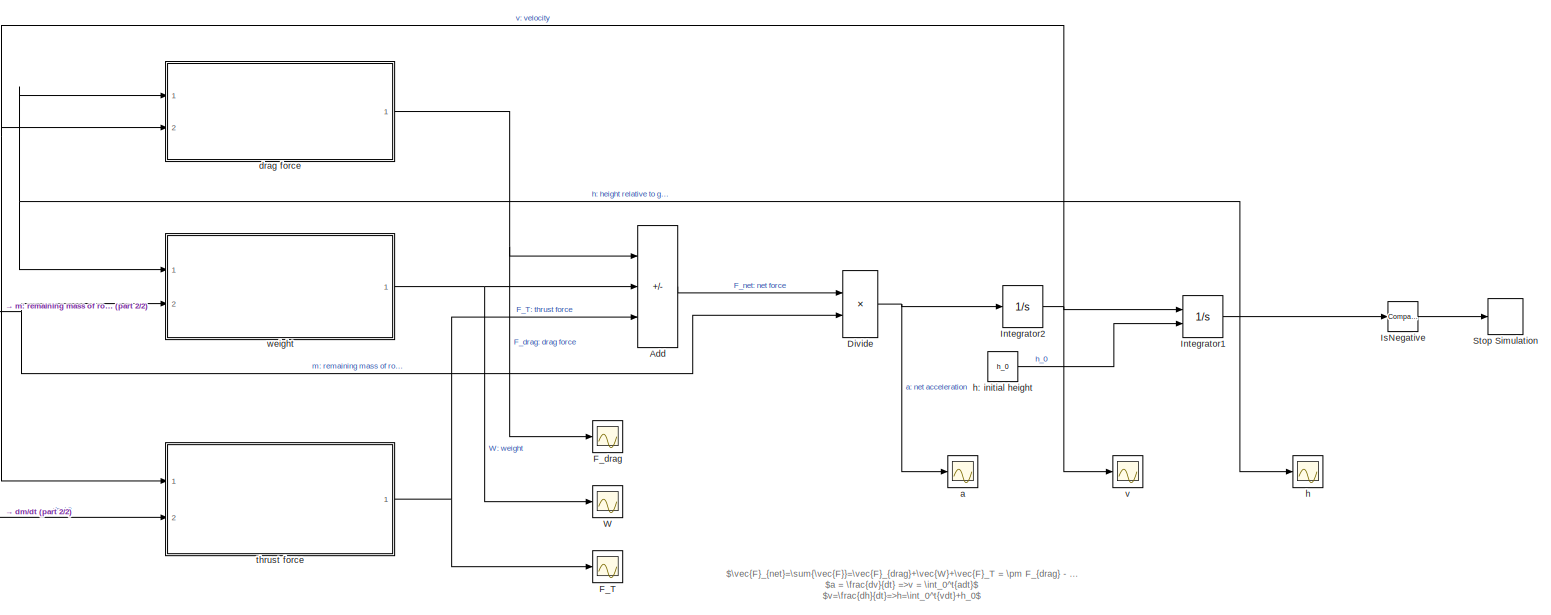
[diagram: root canvas - part 1/2, center side, full height]
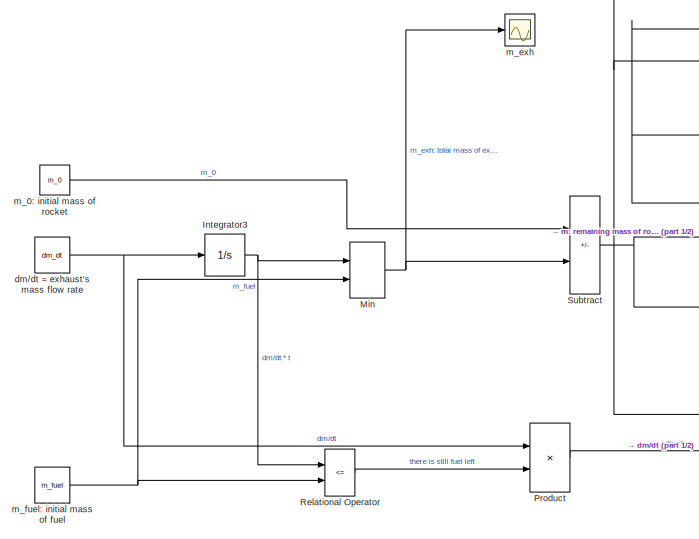
[diagram: root canvas - part 2/2, left side, full height]
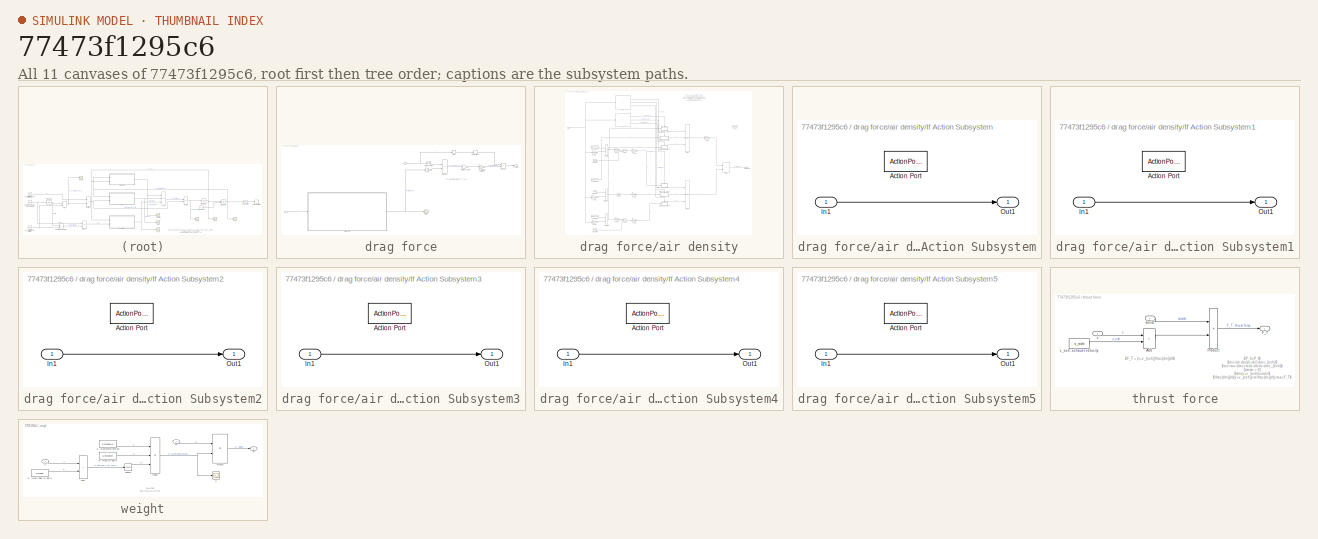
[diagram: thumbnail index - all 11 canvases of the model, root first then tree order]
MODEL slx_77473f1295c6
KIND model
CONFIG AbsTol = auto
CONFIG EnableMultiTasking = off
CONFIG FixedStep = 1e-2
CONFIG MaxStep = auto
CONFIG MinStep = auto
CONFIG RelTol = 1e-3
CONFIG SampleTimeConstraint = Unconstrained
CONFIG SolverName = FixedStepAuto
CONFIG StartTime = 0.0
CONFIG StopTime = 100
BLOCK [Sum] Add
  IconShape = rectangular
  Inputs = +-+
  Ports = [3, 1]
BLOCK [Product] Divide
  Inputs = */
  Ports = [2, 1]
BLOCK [Scope] F_T
  Floating = off
  NumInputPorts = 1
  Ports = [1]
  ScopeSpecificationString = Simulink.scopes.TimeScopeBlockCfg('CurrentConfiguration', extmgr.ConfigurationSet(extmgr.Configuration('Core','General UI',true),extmgr.Configuration('Core','Source UI',true),extmgr.Configuration('Sources','WiredSimulink',true,'DataLoggingVariableName','ScopeData3'),extmgr.Configuration('Visuals','Time Domain',true,'SerializedDisplays',{struct('MinYLimReal','-68.75','MaxYLimReal','7669.0537','YLab...<+1582ch>
BLOCK [Scope] F_drag
  Floating = off
  NumInputPorts = 1
  Ports = [1]
  ScopeSpecificationString = Simulink.scopes.TimeScopeBlockCfg('CurrentConfiguration', extmgr.ConfigurationSet(extmgr.Configuration('Core','General UI',true),extmgr.Configuration('Core','Source UI',true),extmgr.Configuration('Sources','WiredSimulink',true,'DataLoggingVariableName','ScopeData3'),extmgr.Configuration('Visuals','Time Domain',true,'SerializedDisplays',{struct('MinYLimReal','-2259.25359','MaxYLimReal','1015.9362',...<+1597ch>
BLOCK [Integrator] Integrator1
  InitialConditionSource = external
  Ports = [2, 1]
BLOCK [Integrator] Integrator2
  Ports = [1, 1]
BLOCK [Integrator] Integrator3
  Ports = [1, 1]
BLOCK [Reference] IsNegative  REF=simulink/Logic and Bit
Operations/Compare
To Zero
  Ports = [1, 1]
  SourceBlock = simulink/Logic and Bit\nOperations/Compare\nTo Zero
  SourceProductBaseCode = SL
  SourceType = Compare To Zero
BLOCK [MinMax] Min
  Inputs = 2
  Ports = [2, 1]
BLOCK [Product] Product
  Ports = [2, 1]
BLOCK [RelationalOperator] Relational Operator
  InputSameDT = off
  Operator = <=
  OutDataTypeStr = boolean
  Ports = [2, 1]
  RndMeth = Simplest
BLOCK [Stop] Stop Simulation
BLOCK [Sum] Subtract
  IconShape = rectangular
  Inputs = +-
  Ports = [2, 1]
BLOCK [Scope] W
  Floating = off
  NumInputPorts = 1
  Ports = [1]
  ScopeSpecificationString = Simulink.scopes.TimeScopeBlockCfg('CurrentConfiguration', extmgr.ConfigurationSet(extmgr.Configuration('Core','General UI',true),extmgr.Configuration('Core','Source UI',true),extmgr.Configuration('Sources','WiredSimulink',true,'DataLoggingVariableName','ScopeData2'),extmgr.Configuration('Visuals','Time Domain',true,'SerializedDisplays',{struct('MinYLimReal','-68.75','MaxYLimReal','6000.00000','YLa...<+1578ch>
BLOCK [Scope] a
  Floating = off
  NumInputPorts = 1
  Ports = [1]
  ScopeSpecificationString = Simulink.scopes.TimeScopeBlockCfg('CurrentConfiguration', extmgr.ConfigurationSet(extmgr.Configuration('Core','General UI',true),extmgr.Configuration('Core','Source UI',true),extmgr.Configuration('Sources','WiredSimulink',true),extmgr.Configuration('Visuals','Time Domain',true,'SerializedDisplays',{struct('MinYLimReal','-35.64902','MaxYLimReal','20.06671','YLabelReal','','MinYLimMag','0.00000','Ma...<+1425ch>
BLOCK [Constant] dm//dt = exhaust's mass flow rate
  Value = dm_dt
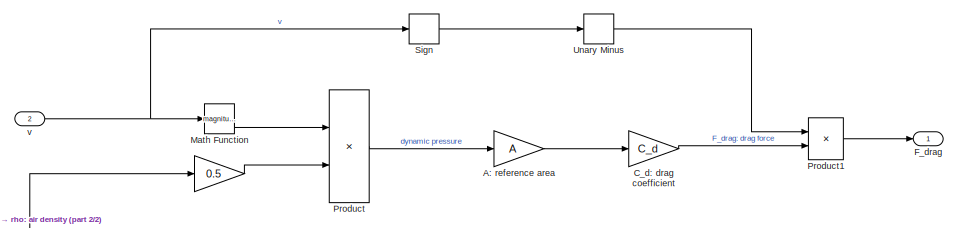
[diagram: drag force - part 1/2, top right region]
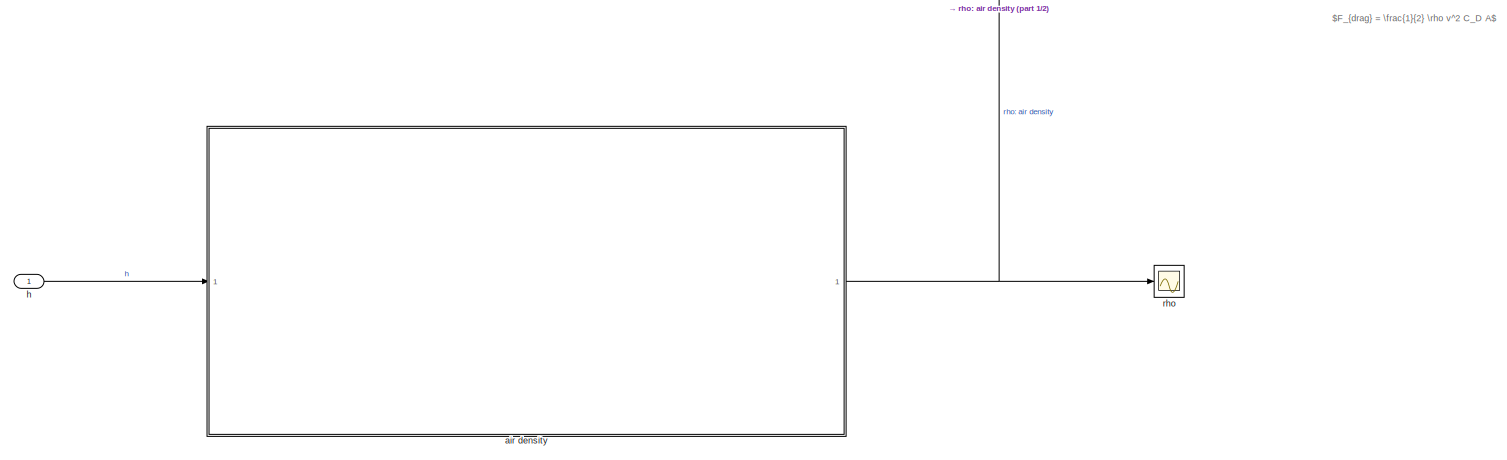
[diagram: drag force - part 2/2, full width, bottom band]
BLOCK [SubSystem] drag force
  Ports = [2, 1]
  RequestExecContextInheritance = off
BLOCK [Gain] drag force/ 
  Gain = 0.5
BLOCK [Gain] drag force/A: reference area
  Gain = A
BLOCK [Gain] drag force/C_d: drag coefficient
  Gain = C_d
BLOCK [Outport] drag force/F_drag
BLOCK [Math] drag force/Math Function
  Operator = magnitude^2
  Ports = [1, 1]
BLOCK [Product] drag force/Product
  Ports = [2, 1]
BLOCK [Product] drag force/Product1
  Ports = [2, 1]
BLOCK [Signum] drag force/Sign
BLOCK [UnaryMinus] drag force/Unary Minus
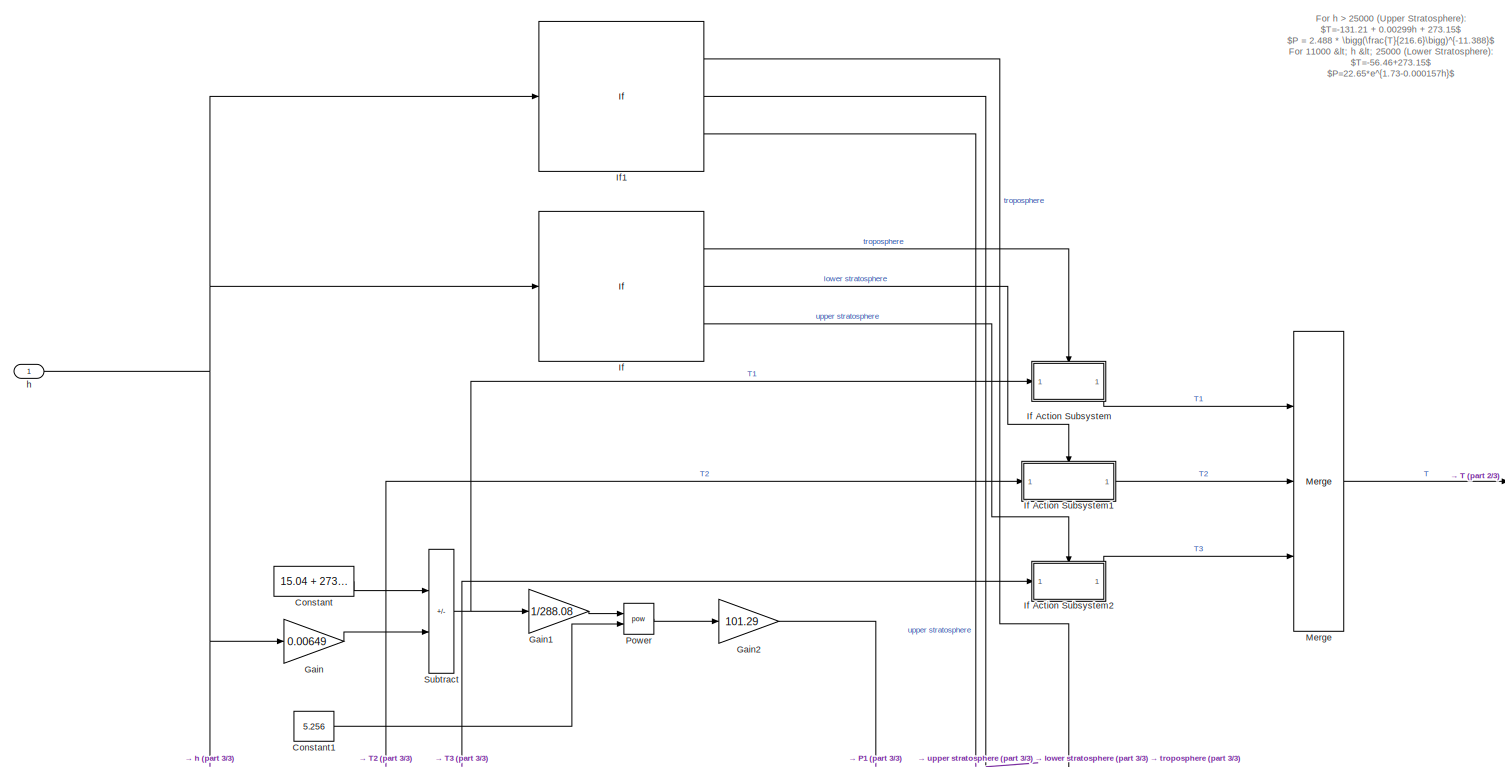
[diagram: drag force/air density - part 1/3, full width, top band]
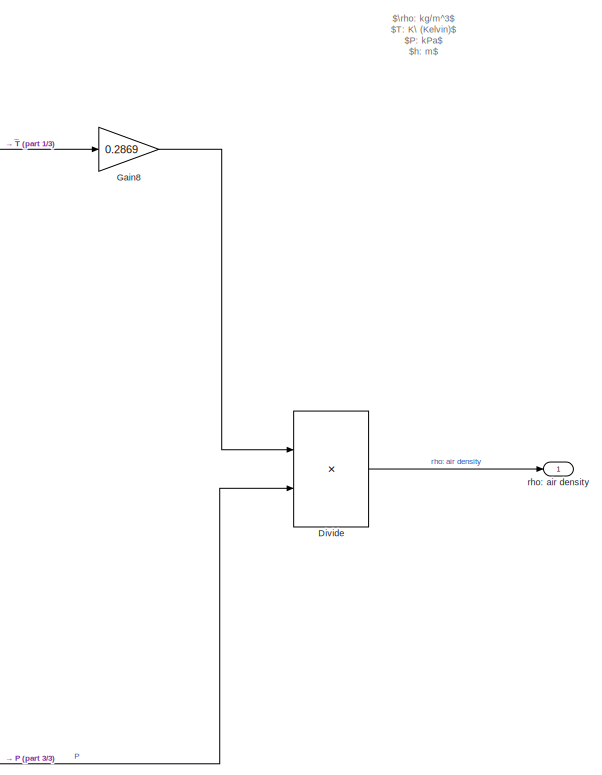
[diagram: drag force/air density - part 2/3, middle right region]
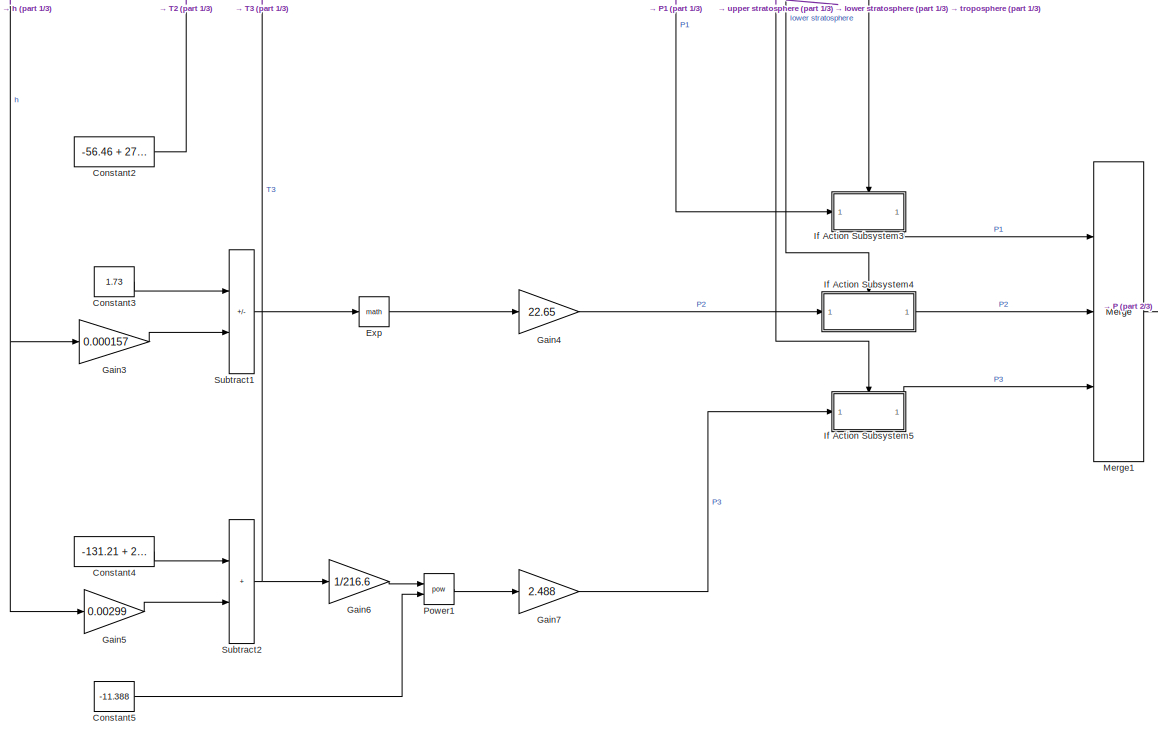
[diagram: drag force/air density - part 3/3, bottom center region]
BLOCK [SubSystem] drag force/air density
  Ports = [1, 1]
  RequestExecContextInheritance = off
BLOCK [Constant] drag force/air density/Constant
  Value = 15.04 + 273.15
BLOCK [Constant] drag force/air density/Constant1
  Value = 5.256
BLOCK [Constant] drag force/air density/Constant2
  Value = -56.46 + 273.15
BLOCK [Constant] drag force/air density/Constant3
  Value = 1.73
BLOCK [Constant] drag force/air density/Constant4
  Value = -131.21 + 273.15
BLOCK [Constant] drag force/air density/Constant5
  Value = -11.388
BLOCK [Product] drag force/air density/Divide
  Inputs = /*
  Ports = [2, 1]
BLOCK [Math] drag force/air density/Exp
  Ports = [1, 1]
BLOCK [Gain] drag force/air density/Gain
  Gain = 0.00649
BLOCK [Gain] drag force/air density/Gain1
  Gain = 1/288.08
BLOCK [Gain] drag force/air density/Gain2
  Gain = 101.29
BLOCK [Gain] drag force/air density/Gain3
  Gain = 0.000157
BLOCK [Gain] drag force/air density/Gain4
  Gain = 22.65
BLOCK [Gain] drag force/air density/Gain5
  Gain = 0.00299
BLOCK [Gain] drag force/air density/Gain6
  Gain = 1/216.6
BLOCK [Gain] drag force/air density/Gain7
  Gain = 2.488
BLOCK [Gain] drag force/air density/Gain8
  Gain = 0.2869
BLOCK [If] drag force/air density/If
  ElseIfExpressions = u1 < 25000
  IfExpression = u1 < 11000
  Ports = [1, 3]
BLOCK [SubSystem] drag force/air density/If Action Subsystem
  Ports = [1, 1, 0, 0, 0, 0, 0, 1]
  RequestExecContextInheritance = off
  TreatAsAtomicUnit = on
BLOCK [ActionPort] drag force/air density/If Action Subsystem/Action Port
  ActionPortLabel = if(u1 < 11000)
BLOCK [Inport] drag force/air density/If Action Subsystem/In1
BLOCK [Outport] drag force/air density/If Action Subsystem/Out1
BLOCK [SubSystem] drag force/air density/If Action Subsystem1
  Ports = [1, 1, 0, 0, 0, 0, 0, 1]
  RequestExecContextInheritance = off
  TreatAsAtomicUnit = on
BLOCK [ActionPort] drag force/air density/If Action Subsystem1/Action Port
  ActionPortLabel = elseif(u1 < 25000)
BLOCK [Inport] drag force/air density/If Action Subsystem1/In1
BLOCK [Outport] drag force/air density/If Action Subsystem1/Out1
BLOCK [SubSystem] drag force/air density/If Action Subsystem2
  Ports = [1, 1, 0, 0, 0, 0, 0, 1]
  RequestExecContextInheritance = off
  TreatAsAtomicUnit = on
BLOCK [ActionPort] drag force/air density/If Action Subsystem2/Action Port
  ActionPortLabel = else
BLOCK [Inport] drag force/air density/If Action Subsystem2/In1
BLOCK [Outport] drag force/air density/If Action Subsystem2/Out1
BLOCK [SubSystem] drag force/air density/If Action Subsystem3
  Ports = [1, 1, 0, 0, 0, 0, 0, 1]
  RequestExecContextInheritance = off
  TreatAsAtomicUnit = on
BLOCK [ActionPort] drag force/air density/If Action Subsystem3/Action Port
  ActionPortLabel = if(u1 < 11000)
BLOCK [Inport] drag force/air density/If Action Subsystem3/In1
BLOCK [Outport] drag force/air density/If Action Subsystem3/Out1
BLOCK [SubSystem] drag force/air density/If Action Subsystem4
  Ports = [1, 1, 0, 0, 0, 0, 0, 1]
  RequestExecContextInheritance = off
  TreatAsAtomicUnit = on
BLOCK [ActionPort] drag force/air density/If Action Subsystem4/Action Port
  ActionPortLabel = elseif(u1 < 25000)
BLOCK [Inport] drag force/air density/If Action Subsystem4/In1
BLOCK [Outport] drag force/air density/If Action Subsystem4/Out1
BLOCK [SubSystem] drag force/air density/If Action Subsystem5
  Ports = [1, 1, 0, 0, 0, 0, 0, 1]
  RequestExecContextInheritance = off
  TreatAsAtomicUnit = on
BLOCK [ActionPort] drag force/air density/If Action Subsystem5/Action Port
  ActionPortLabel = else
BLOCK [Inport] drag force/air density/If Action Subsystem5/In1
BLOCK [Outport] drag force/air density/If Action Subsystem5/Out1
BLOCK [If] drag force/air density/If1
  ElseIfExpressions = u1 < 25000
  IfExpression = u1 < 11000
  Ports = [1, 3]
BLOCK [Merge] drag force/air density/Merge
  Inputs = 3
  Ports = [3, 1]
BLOCK [Merge] drag force/air density/Merge1
  Inputs = 3
  Ports = [3, 1]
BLOCK [Math] drag force/air density/Power
  Operator = pow
  Ports = [2, 1]
BLOCK [Math] drag force/air density/Power1
  Operator = pow
  Ports = [2, 1]
BLOCK [Sum] drag force/air density/Subtract
  IconShape = rectangular
  Inputs = +-
  Ports = [2, 1]
BLOCK [Sum] drag force/air density/Subtract1
  IconShape = rectangular
  Inputs = +-
  Ports = [2, 1]
BLOCK [Sum] drag force/air density/Subtract2
  IconShape = rectangular
  Ports = [2, 1]
BLOCK [Inport] drag force/air density/h
BLOCK [Outport] drag force/air density/rho: air density
BLOCK [Inport] drag force/h
BLOCK [Scope] drag force/rho
  Floating = off
  NumInputPorts = 1
  Ports = [1]
  ScopeSpecificationString = Simulink.scopes.TimeScopeBlockCfg('CurrentConfiguration', extmgr.ConfigurationSet(extmgr.Configuration('Core','General UI',true),extmgr.Configuration('Core','Source UI',true),extmgr.Configuration('Sources','WiredSimulink',true,'DataLoggingVariableName','ScopeData1'),extmgr.Configuration('Visuals','Time Domain',true,'SerializedDisplays',{struct('MinYLimReal','0.14009','MaxYLimReal','1.34835','YLabe...<+1421ch>
BLOCK [Inport] drag force/v
  Port = 2
BLOCK [Scope] h
  Floating = off
  NumInputPorts = 1
  Ports = [1]
  ScopeSpecificationString = Simulink.scopes.TimeScopeBlockCfg('CurrentConfiguration', extmgr.ConfigurationSet(extmgr.Configuration('Core','General UI',true),extmgr.Configuration('Core','Source UI',true),extmgr.Configuration('Sources','WiredSimulink',true,'DataLoggingVariableName','ScopeData2'),extmgr.Configuration('Visuals','Time Domain',true,'SerializedDisplays',{struct('MinYLimReal','-1053.54424','MaxYLimReal','9481.89818'...<+1443ch>
BLOCK [Constant] h: initial height
  Value = h_0
BLOCK [Constant] m_0: initial mass of rocket
  Value = m_0
BLOCK [Scope] m_exh
  Floating = off
  NumInputPorts = 1
  Ports = [1]
  ScopeSpecificationString = Simulink.scopes.TimeScopeBlockCfg('CurrentConfiguration', extmgr.ConfigurationSet(extmgr.Configuration('Core','General UI',true),extmgr.Configuration('Core','Source UI',true),extmgr.Configuration('Sources','WiredSimulink',true,'DataLoggingVariableName','ScopeData1'),extmgr.Configuration('Visuals','Time Domain',true,'SerializedDisplays',{struct('MinYLimReal','-68.75','MaxYLimReal','618.75','YLabelR...<+1552ch>
BLOCK [Constant] m_fuel: initial mass of fuel
  Value = m_fuel
BLOCK [SubSystem] thrust force
  Ports = [2, 1]
  RequestExecContextInheritance = off
BLOCK [Sum] thrust force/Add
  IconShape = rectangular
  Ports = [2, 1]
BLOCK [Outport] thrust force/F_T
BLOCK [Product] thrust force/Product
  Ports = [2, 1]
BLOCK [Inport] thrust force/dm//dt
  Port = 2
BLOCK [Inport] thrust force/v
BLOCK [Constant] thrust force/v_exh: exhaust velocity
  Value = v_exh
BLOCK [Scope] v
  Floating = off
  NumInputPorts = 1
  Ports = [1]
  ScopeSpecificationString = Simulink.scopes.TimeScopeBlockCfg('CurrentConfiguration', extmgr.ConfigurationSet(extmgr.Configuration('Core','General UI',true),extmgr.Configuration('Core','Source UI',true),extmgr.Configuration('Sources','WiredSimulink',true,'DataLoggingVariableName','ScopeData1'),extmgr.Configuration('Visuals','Time Domain',true,'SerializedDisplays',{struct('MinYLimReal','-254.13872','MaxYLimReal','391.19568','...<+1420ch>
BLOCK [SubSystem] weight
  Ports = [2, 1]
  RequestExecContextInheritance = off
BLOCK [Sum] weight/Add1
  IconShape = rectangular
  Ports = [2, 1]
BLOCK [Product] weight/Divide
  Inputs = **/
  Ports = [3, 1]
BLOCK [Constant] weight/G: gravitational constant
  Value = 6.67408e-11
BLOCK [Constant] weight/M: mass of Earth
  Value = 5.97237e24
BLOCK [Product] weight/Product
  Ports = [2, 1]
BLOCK [Constant] weight/R: mean radius of Earth
  Value = 6.371e6
BLOCK [Math] weight/Square
  Operator = square
  Ports = [1, 1]
BLOCK [Outport] weight/W
BLOCK [Scope] weight/g
  Floating = off
  NumInputPorts = 1
  Ports = [1]
  ScopeSpecificationString = Simulink.scopes.TimeScopeBlockCfg('CurrentConfiguration', extmgr.ConfigurationSet(extmgr.Configuration('Core','General UI',true),extmgr.Configuration('Core','Source UI',true),extmgr.Configuration('Sources','WiredSimulink',true,'DataLoggingVariableName','ScopeData1'),extmgr.Configuration('Visuals','Time Domain',true,'SerializedDisplays',{struct('MinYLimReal','9.75398','MaxYLimReal','9.82591','YLabe...<+1386ch>
BLOCK [Inport] weight/h
BLOCK [Inport] weight/m
  Port = 2
ANNOTATION (root): $\vec{F}_{net}=\sum{\vec{F}}=\vec{F}_{drag}+\vec{W}+\vec{F}_T = \pm F_{drag} - W + F_T$ $a = \frac{dv}{dt} =>v = \int_0^t{adt}$ $v=\frac{dh}{dt}=>h=\int_0^t{vdt}+h_0$
ANNOTATION drag force: $F_{drag} = \frac{1}{2} \rho v^2 C_D A$
ANNOTATION drag force/air density: $\rho: kg/m^3$ $T: K\ (Kelvin)$ $P: kPa$ $h: m$
ANNOTATION drag force/air density: For h > 25000 (Upper Stratosphere): $T=-131.21 + 0.00299h + 273.15$ $P = 2.488 * \bigg(\frac{T}{216.6}\bigg)^{-11.388}$ For 11000 < h < 25000 (Lower Stratosphere): $T=-56.46+273.15$ $P=22.65*e^{1.73-0.000157h}$ For h < 11000 (Troposphere): $T=15.04 -0.00649h + 273.15$ $P = 101.29 * \bigg(\frac{T}{288.08}\bigg)^{5.256}$ $\rho = \frac{P}{0.2869T}$
ANNOTATION thrust force: $P_0=P_f$ $mv=(m-dm)(v+dv)-dmv_{exh}$ $mv=mv-dmv+mdv-dmdv-dmv_{exh}$ (dmdv = 0) $dm(v+v_{exh})=mdv$ $\frac{dm}{dt}(v+v_{exh})=m\frac{dv}{dt}=ma=F_T$
ANNOTATION thrust force: $F_T = (v+v_{exh})\frac{dm}{dt$
ANNOTATION weight: $W=mg$ $g=\frac{GM}{d^2}$
LINE Add:1 -> Divide:1
NET Divide:1 -> Integrator2:1, a:1
NET Integrator1:1 -> IsNegative:1, drag force:1, h:1, weight:1
NET Integrator2:1 -> Integrator1:1, drag force:2, thrust force:1, v:1
NET Integrator3:1 -> Min:1, Relational Operator:1
LINE IsNegative:1 -> Stop Simulation:1
NET Min:1 -> Subtract:2, m_exh:1
LINE Product:1 -> thrust force:2
LINE Relational Operator:1 -> Product:2
NET Subtract:1 -> Divide:2, weight:2
NET dm//dt = exhaust's mass flow rate:1 -> Integrator3:1, Product:1
LINE drag force/ :1 -> drag force/Product:2
LINE drag force/A: reference area:1 -> drag force/C_d: drag coefficient:1
LINE drag force/C_d: drag coefficient:1 -> drag force/Product1:2
LINE drag force/Math Function:1 -> drag force/Product:1
LINE drag force/Product1:1 -> drag force/F_drag:1
LINE drag force/Product:1 -> drag force/A: reference area:1
LINE drag force/Sign:1 -> drag force/Unary Minus:1
LINE drag force/Unary Minus:1 -> drag force/Product1:1
LINE drag force/air density/Constant1:1 -> drag force/air density/Power:2
LINE drag force/air density/Constant2:1 -> drag force/air density/If Action Subsystem1:1
LINE drag force/air density/Constant3:1 -> drag force/air density/Subtract1:1
LINE drag force/air density/Constant4:1 -> drag force/air density/Subtract2:1
LINE drag force/air density/Constant5:1 -> drag force/air density/Power1:2
LINE drag force/air density/Constant:1 -> drag force/air density/Subtract:1
LINE drag force/air density/Divide:1 -> drag force/air density/rho: air density:1
LINE drag force/air density/Exp:1 -> drag force/air density/Gain4:1
LINE drag force/air density/Gain1:1 -> drag force/air density/Power:1
LINE drag force/air density/Gain2:1 -> drag force/air density/If Action Subsystem3:1
LINE drag force/air density/Gain3:1 -> drag force/air density/Subtract1:2
LINE drag force/air density/Gain4:1 -> drag force/air density/If Action Subsystem4:1
LINE drag force/air density/Gain5:1 -> drag force/air density/Subtract2:2
LINE drag force/air density/Gain6:1 -> drag force/air density/Power1:1
LINE drag force/air density/Gain7:1 -> drag force/air density/If Action Subsystem5:1
LINE drag force/air density/Gain8:1 -> drag force/air density/Divide:1
LINE drag force/air density/Gain:1 -> drag force/air density/Subtract:2
LINE drag force/air density/If Action Subsystem/In1:1 -> drag force/air density/If Action Subsystem/Out1:1
LINE drag force/air density/If Action Subsystem1/In1:1 -> drag force/air density/If Action Subsystem1/Out1:1
LINE drag force/air density/If Action Subsystem1:1 -> drag force/air density/Merge:2
LINE drag force/air density/If Action Subsystem2/In1:1 -> drag force/air density/If Action Subsystem2/Out1:1
LINE drag force/air density/If Action Subsystem2:1 -> drag force/air density/Merge:3
LINE drag force/air density/If Action Subsystem3/In1:1 -> drag force/air density/If Action Subsystem3/Out1:1
LINE drag force/air density/If Action Subsystem3:1 -> drag force/air density/Merge1:1
LINE drag force/air density/If Action Subsystem4/In1:1 -> drag force/air density/If Action Subsystem4/Out1:1
LINE drag force/air density/If Action Subsystem4:1 -> drag force/air density/Merge1:2
LINE drag force/air density/If Action Subsystem5/In1:1 -> drag force/air density/If Action Subsystem5/Out1:1
LINE drag force/air density/If Action Subsystem5:1 -> drag force/air density/Merge1:3
LINE drag force/air density/If Action Subsystem:1 -> drag force/air density/Merge:1
LINE drag force/air density/If1:1 -> drag force/air density/If Action Subsystem3:ifaction
LINE drag force/air density/If1:2 -> drag force/air density/If Action Subsystem4:ifaction
LINE drag force/air density/If1:3 -> drag force/air density/If Action Subsystem5:ifaction
LINE drag force/air density/If:1 -> drag force/air density/If Action Subsystem:ifaction
LINE drag force/air density/If:2 -> drag force/air density/If Action Subsystem1:ifaction
LINE drag force/air density/If:3 -> drag force/air density/If Action Subsystem2:ifaction
LINE drag force/air density/Merge1:1 -> drag force/air density/Divide:2
LINE drag force/air density/Merge:1 -> drag force/air density/Gain8:1
LINE drag force/air density/Power1:1 -> drag force/air density/Gain7:1
LINE drag force/air density/Power:1 -> drag force/air density/Gain2:1
LINE drag force/air density/Subtract1:1 -> drag force/air density/Exp:1
NET drag force/air density/Subtract2:1 -> drag force/air density/Gain6:1, drag force/air density/If Action Subsystem2:1
NET drag force/air density/Subtract:1 -> drag force/air density/Gain1:1, drag force/air density/If Action Subsystem:1
NET drag force/air density/h:1 -> drag force/air density/Gain3:1, drag force/air density/Gain5:1, drag force/air density/Gain:1, drag force/air density/If1:1, drag force/air density/If:1
NET drag force/air density:1 -> drag force/ :1, drag force/rho:1
LINE drag force/h:1 -> drag force/air density:1
NET drag force/v:1 -> drag force/Math Function:1, drag force/Sign:1
NET drag force:1 -> Add:1, F_drag:1
LINE h: initial height:1 -> Integrator1:2
LINE m_0: initial mass of rocket:1 -> Subtract:1
NET m_fuel: initial mass of fuel:1 -> Min:2, Relational Operator:2
LINE thrust force/Add:1 -> thrust force/Product:2
LINE thrust force/Product:1 -> thrust force/F_T:1
LINE thrust force/dm//dt:1 -> thrust force/Product:1
LINE thrust force/v:1 -> thrust force/Add:1
LINE thrust force/v_exh: exhaust velocity:1 -> thrust force/Add:2
NET thrust force:1 -> Add:3, F_T:1
LINE weight/Add1:1 -> weight/Square:1
NET weight/Divide:1 -> weight/Product:2, weight/g:1
LINE weight/G: gravitational constant:1 -> weight/Divide:1
LINE weight/M: mass of Earth:1 -> weight/Divide:2
LINE weight/Product:1 -> weight/W:1
LINE weight/R: mean radius of Earth:1 -> weight/Add1:2
LINE weight/Square:1 -> weight/Divide:3
LINE weight/h:1 -> weight/Add1:1
LINE weight/m:1 -> weight/Product:1
NET weight:1 -> Add:2, W:1
note: NET lines group one-source signal fan-out (src -> all destinations, sorted); 1:1 wires keep LINE
